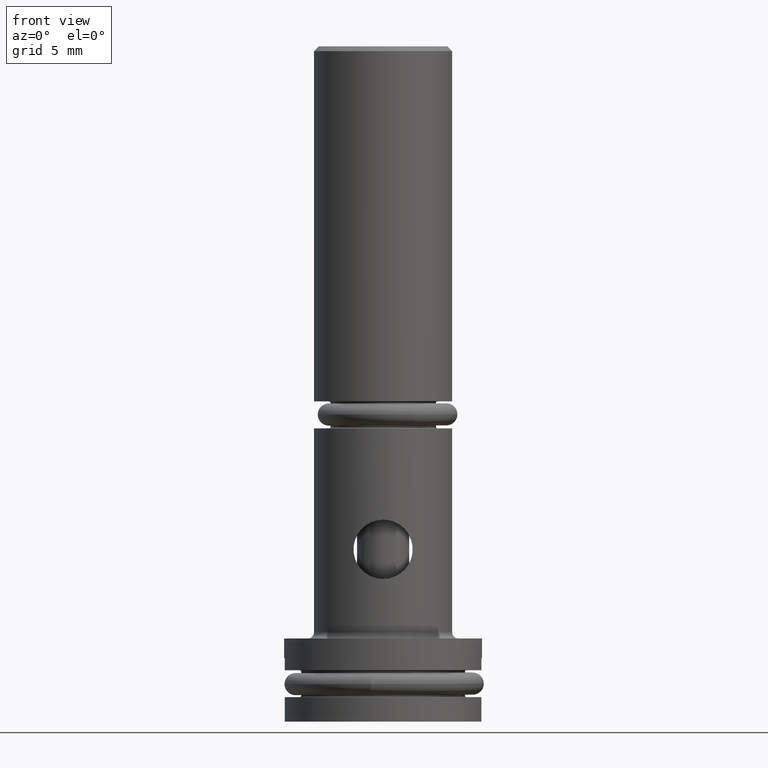
[diagram: clean part render]
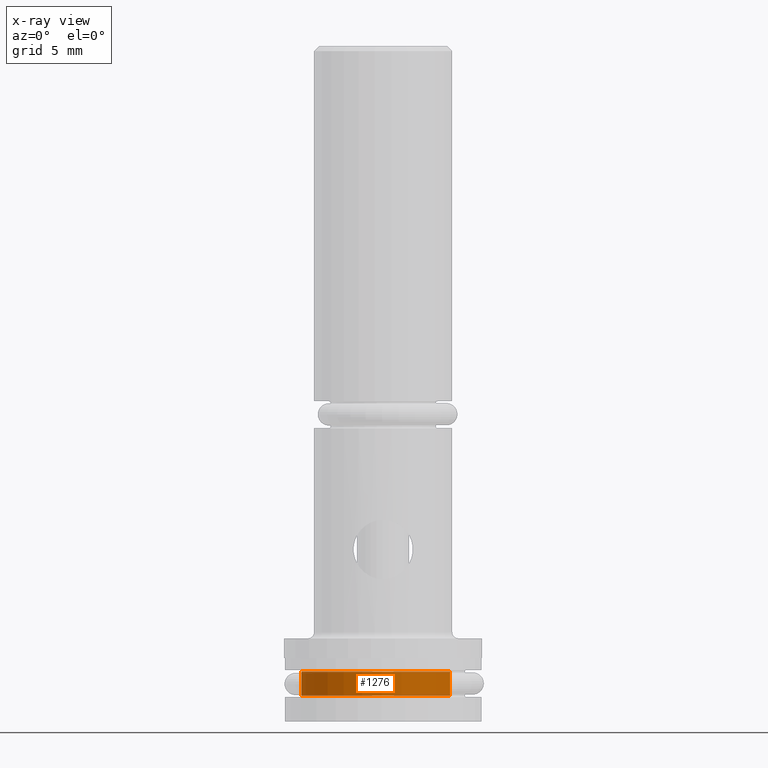
[diagram: x-ray — body ghosted, one internal face saturated and labeled with its STEP entity id]
A machine part, front view, then the same camera in x-ray: the body is ghosted and one INTERNAL B-rep face — a face not visible from any outside direction — is saturated and labeled: STEP entity #1276.
In plain terms, the highlighted cylindrical surface (partial cylindrical patch) has radius 6.5913 mm, axis along (-0, 0, -1).
Its self-contained STEP definition (entity closure, byte-faithful):
#216 = ORIENTED_EDGE ( 'NONE', *, *, #1759, .F. ) ;
#217 = ORIENTED_EDGE ( 'NONE', *, *, #1748, .T. ) ;
#218 = ORIENTED_EDGE ( 'NONE', *, *, #1766, .T. ) ;
#219 = ORIENTED_EDGE ( 'NONE', *, *, #1753, .F. ) ;
#743 = VERTEX_POINT ( 'NONE', #2142 ) ;
#749 = VERTEX_POINT ( 'NONE', #2145 ) ;
#766 = VERTEX_POINT ( 'NONE', #2162 ) ;
#818 = VERTEX_POINT ( 'NONE', #2193 ) ;
#925 = CARTESIAN_POINT ( 'NONE',  ( 0.0000000000000000000, 0.0000000000000000000, -0.04299999999999999000 ) ) ;
#926 = DIRECTION ( 'NONE',  ( -0.0000000000000000000, -0.0000000000000000000, -1.000000000000000000 ) ) ;
#927 = DIRECTION ( 'NONE',  ( -1.000000000000000000, 0.0000000000000000000, 0.0000000000000000000 ) ) ;
#938 = CARTESIAN_POINT ( 'NONE',  ( 0.0000000000000000000, 0.0000000000000000000, -0.1180000000000000100 ) ) ;
#939 = DIRECTION ( 'NONE',  ( -0.0000000000000000000, -0.0000000000000000000, -1.000000000000000000 ) ) ;
#940 = DIRECTION ( 'NONE',  ( -1.000000000000000000, 0.0000000000000000000, 0.0000000000000000000 ) ) ;
#956 = CARTESIAN_POINT ( 'NONE',  ( 0.2595000000000000100, 3.177958443787381900E-017, -0.2928196444417974200 ) ) ;
#957 = DIRECTION ( 'NONE',  ( -0.0000000000000000000, -0.0000000000000000000, -1.000000000000000000 ) ) ;
#976 = CARTESIAN_POINT ( 'NONE',  ( -0.2595000000000000100, 0.0000000000000000000, -0.2928196444417974200 ) ) ;
#977 = DIRECTION ( 'NONE',  ( -0.0000000000000000000, -0.0000000000000000000, -1.000000000000000000 ) ) ;
#1243 = EDGE_LOOP ( 'NONE', ( #216, #217, #218, #219 ) ) ;
#1276 = ADVANCED_FACE ( 'NONE', ( #1373 ), #1374, .T. ) ;
#1373 = FACE_OUTER_BOUND ( 'NONE', #1243, .T. ) ;
#1374 = CYLINDRICAL_SURFACE ( 'NONE', #1878, 0.2595000000000000100 ) ;
#1506 = CIRCLE ( 'NONE', #1943, 0.2595000000000000100 ) ;
#1513 = CIRCLE ( 'NONE', #1946, 0.2594999999999999500 ) ;
#1518 = LINE ( 'NONE', #956, #1520 ) ;
#1520 = VECTOR ( 'NONE', #957, 39.37007874015748100 ) ;
#1526 = LINE ( 'NONE', #976, #1528 ) ;
#1528 = VECTOR ( 'NONE', #977, 39.37007874015748100 ) ;
#1748 = EDGE_CURVE ( 'NONE', #743, #818, #1506, .T. ) ;
#1753 = EDGE_CURVE ( 'NONE', #749, #766, #1513, .T. ) ;
#1759 = EDGE_CURVE ( 'NONE', #743, #749, #1518, .T. ) ;
#1766 = EDGE_CURVE ( 'NONE', #818, #766, #1526, .T. ) ;
#1878 = AXIS2_PLACEMENT_3D ( 'NONE', #2321, #2322, #2323 ) ;
#1943 = AXIS2_PLACEMENT_3D ( 'NONE', #925, #926, #927 ) ;
#1946 = AXIS2_PLACEMENT_3D ( 'NONE', #938, #939, #940 ) ;
#2142 = CARTESIAN_POINT ( 'NONE',  ( 0.2595000000000000100, 3.208574613766065100E-017, -0.04299999999999999000 ) ) ;
#2145 = CARTESIAN_POINT ( 'NONE',  ( 0.2594999999999999500, 3.177958443787381300E-017, -0.1180000000000000100 ) ) ;
#2162 = CARTESIAN_POINT ( 'NONE',  ( -0.2594999999999999500, 0.0000000000000000000, -0.1180000000000000100 ) ) ;
#2193 = CARTESIAN_POINT ( 'NONE',  ( -0.2595000000000000100, 0.0000000000000000000, -0.04299999999999999000 ) ) ;
#2321 = CARTESIAN_POINT ( 'NONE',  ( 0.0000000000000000000, 0.0000000000000000000, -0.2928196444417974200 ) ) ;
#2322 = DIRECTION ( 'NONE',  ( -0.0000000000000000000, -0.0000000000000000000, -1.000000000000000000 ) ) ;
#2323 = DIRECTION ( 'NONE',  ( -1.000000000000000000, 0.0000000000000000000, 0.0000000000000000000 ) ) ;